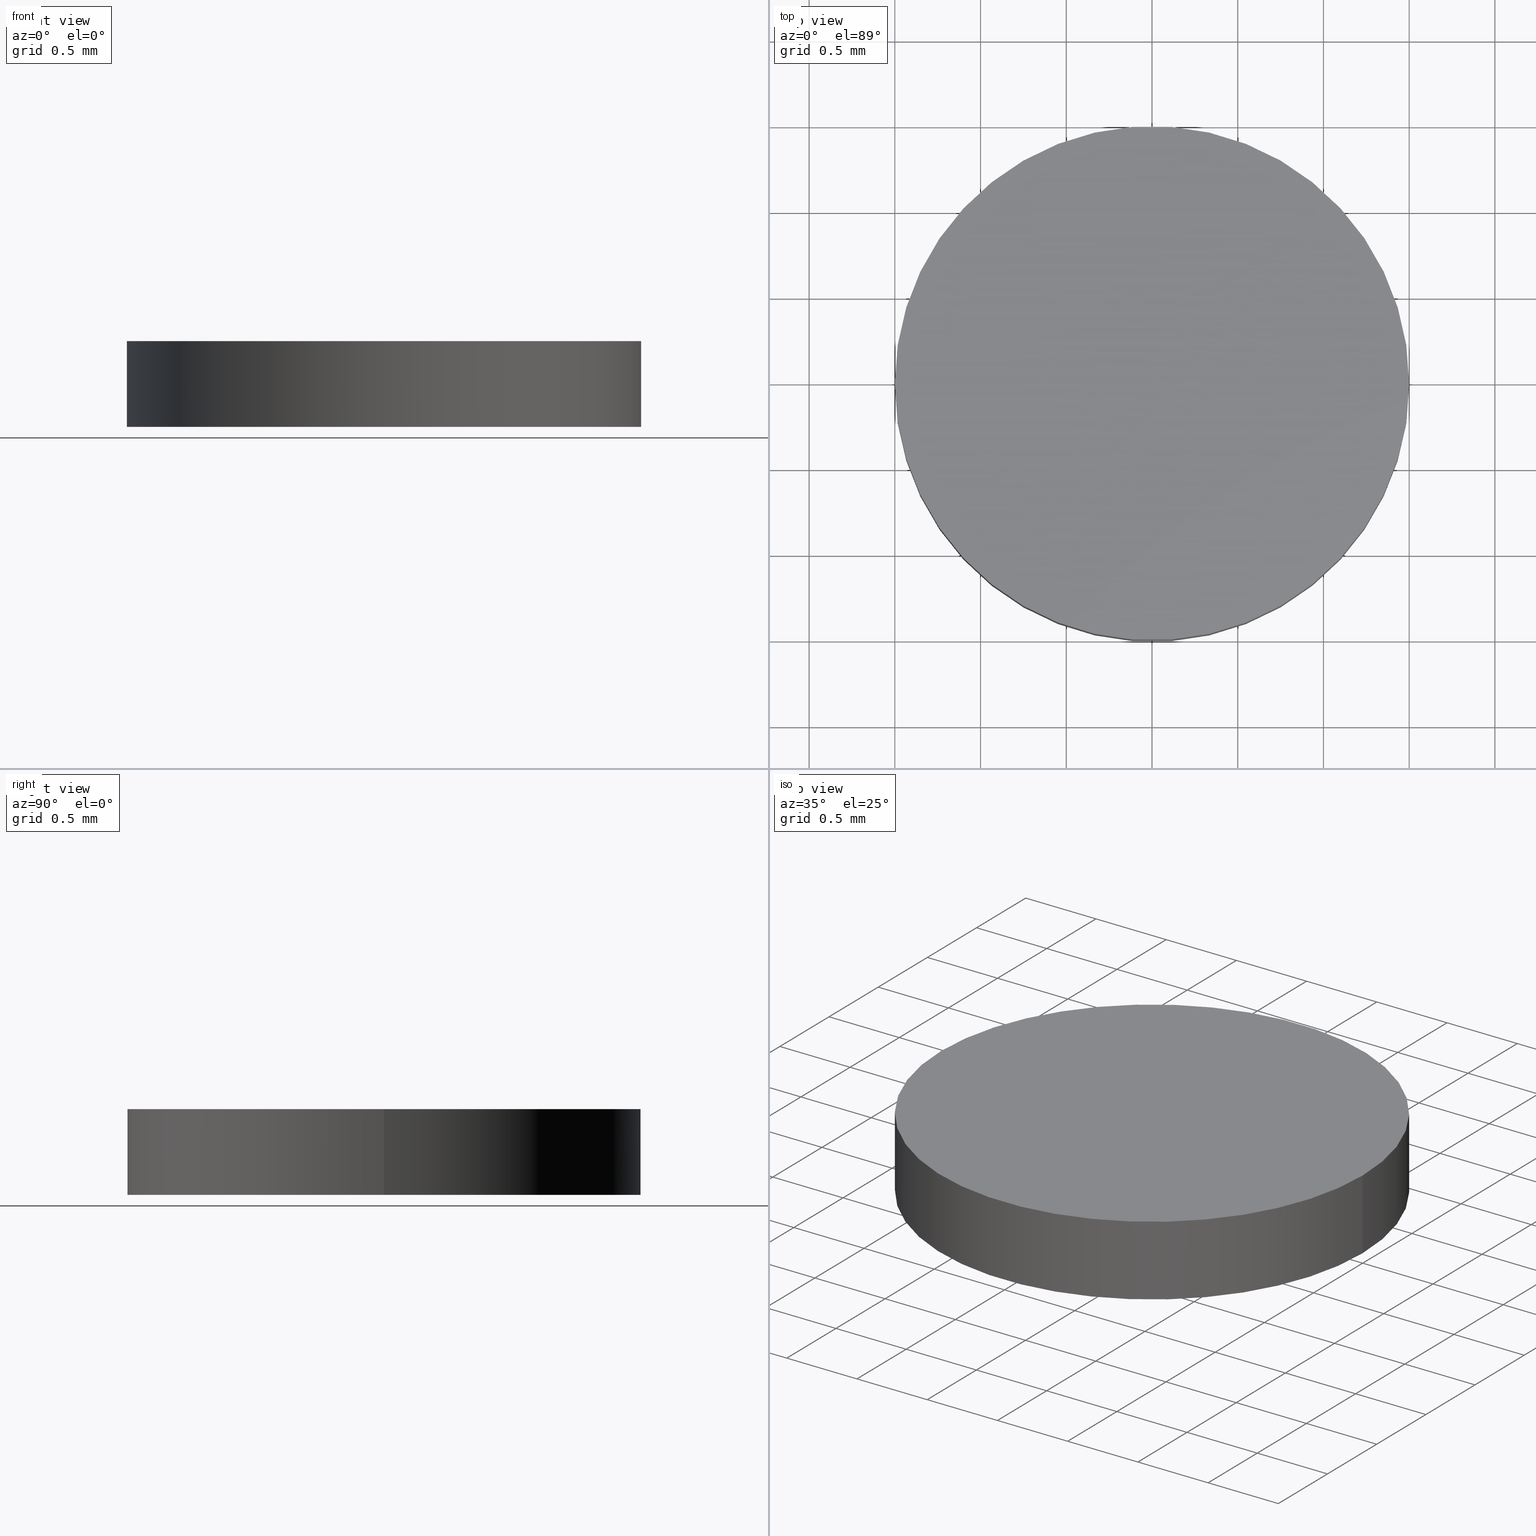
[diagram: canonical four-view strip — front | top / right | iso, engineering-drawing reading convention]
A machine part, canonical four-view strip (front | top / right | iso — engineering-drawing reading convention). The complete STEP part file that produces these views, byte-faithful:
ISO-10303-21;
HEADER;
FILE_DESCRIPTION (( 'STEP AP214' ),
    '1' );
FILE_NAME ('190110.STEP',
    '2019-07-17T01:46:05',
    ( 'user' ),
    ( '΢���й�' ),
    'SwSTEP 2.0',
    'SolidWorks 2016',
    '' );
FILE_SCHEMA (( 'AUTOMOTIVE_DESIGN' ));
ENDSEC;

DATA;
#1 = AXIS2_PLACEMENT_3D ( 'NONE', #107, #61, #57 ) ;
#2 = VERTEX_POINT ( 'NONE', #9 ) ;
#3 = SURFACE_STYLE_FILL_AREA ( #138 ) ;
#4 = SURFACE_STYLE_USAGE ( .BOTH. , #82 ) ;
#5 = AXIS2_PLACEMENT_3D ( 'NONE', #71, #135, #55 ) ;
#6 = DIRECTION ( 'NONE',  ( 0.0000000000000000000, 0.0000000000000000000, 1.000000000000000000 ) ) ;
#7 = MANIFOLD_SOLID_BREP ( '͹̨-����1', #62 ) ;
#8 = DIRECTION ( 'NONE',  ( -1.000000000000000000, 0.0000000000000000000, 0.0000000000000000000 ) ) ;
#9 = CARTESIAN_POINT ( 'NONE',  ( 1.500000000000000200, 1.836970198721030200E-016, 0.0000000000000000000 ) ) ;
#10 = ORIENTED_EDGE ( 'NONE', *, *, #132, .F. ) ;
#11 = AXIS2_PLACEMENT_3D ( 'NONE', #52, #116, #40 ) ;
#12 = LINE ( 'NONE', #128, #124 ) ;
#13 = FACE_OUTER_BOUND ( 'NONE', #45, .T. ) ;
#14 = FILL_AREA_STYLE ('',( #113 ) ) ;
#15 = PRODUCT_DEFINITION_SHAPE ( 'NONE', 'NONE',  #99 ) ;
#16 = DIRECTION ( 'NONE',  ( 1.000000000000000000, 0.0000000000000000000, 0.0000000000000000000 ) ) ;
#17 = ORIENTED_EDGE ( 'NONE', *, *, #92, .T. ) ;
#18 = DIRECTION ( 'NONE',  ( -0.0000000000000000000, -0.0000000000000000000, -1.000000000000000000 ) ) ;
#19 = EDGE_CURVE ( 'NONE', #120, #63, #12, .T. ) ;
#20 = ADVANCED_FACE ( 'NONE', ( #32 ), #68, .F. ) ;
#21 = DIRECTION ( 'NONE',  ( 0.0000000000000000000, 0.0000000000000000000, 1.000000000000000000 ) ) ;
#22 = CARTESIAN_POINT ( 'NONE',  ( 0.0000000000000000000, 0.0000000000000000000, 0.0000000000000000000 ) ) ;
#23 = ORIENTED_EDGE ( 'NONE', *, *, #115, .T. ) ;
#24 =( GEOMETRIC_REPRESENTATION_CONTEXT ( 3 ) GLOBAL_UNCERTAINTY_ASSIGNED_CONTEXT ( ( #46 ) ) GLOBAL_UNIT_ASSIGNED_CONTEXT ( ( #125, #50, #112 ) ) REPRESENTATION_CONTEXT ( 'NONE', 'WORKASPACE' ) );
#25 = ADVANCED_BREP_SHAPE_REPRESENTATION ( '190110', ( #7, #41 ), #24 ) ;
#26 = APPLICATION_PROTOCOL_DEFINITION ( 'draft international standard', 'automotive_design', 1998, #100 ) ;
#27 = CARTESIAN_POINT ( 'NONE',  ( 0.0000000000000000000, 0.0000000000000000000, 0.5000000000000000000 ) ) ;
#28 = PLANE ( 'NONE',  #109 ) ;
#29 = CARTESIAN_POINT ( 'NONE',  ( 0.0000000000000000000, 0.0000000000000000000, 0.5000000000000000000 ) ) ;
#30 = EDGE_CURVE ( 'NONE', #39, #120, #98, .T. ) ;
#31 = ORIENTED_EDGE ( 'NONE', *, *, #122, .F. ) ;
#32 = FACE_OUTER_BOUND ( 'NONE', #67, .T. ) ;
#33 = MECHANICAL_DESIGN_GEOMETRIC_PRESENTATION_REPRESENTATION (  '', ( #79 ), #47 ) ;
#34 = SHAPE_DEFINITION_REPRESENTATION ( #15, #25 ) ;
#35 = EDGE_LOOP ( 'NONE', ( #88, #23, #17, #65 ) ) ;
#36 = PRODUCT_CONTEXT ( 'NONE', #89, 'mechanical' ) ;
#37 = COLOUR_RGB ( '',1.000000000000000000, 1.000000000000000000, 1.000000000000000000 ) ;
#38 = CARTESIAN_POINT ( 'NONE',  ( 0.0000000000000000000, 0.0000000000000000000, 0.0000000000000000000 ) ) ;
#39 = VERTEX_POINT ( 'NONE', #75 ) ;
#40 = DIRECTION ( 'NONE',  ( 1.000000000000000000, 0.0000000000000000000, 0.0000000000000000000 ) ) ;
#41 = AXIS2_PLACEMENT_3D ( 'NONE', #38, #49, #111 ) ;
#42 =( NAMED_UNIT ( * ) PLANE_ANGLE_UNIT ( ) SI_UNIT ( $, .RADIAN. ) );
#43 = COLOUR_RGB ( '',1.000000000000000000, 1.000000000000000000, 1.000000000000000000 ) ;
#44 = MECHANICAL_DESIGN_GEOMETRIC_PRESENTATION_REPRESENTATION (  '', ( #103 ), #58 ) ;
#45 = EDGE_LOOP ( 'NONE', ( #93, #31, #78, #81 ) ) ;
#46 = UNCERTAINTY_MEASURE_WITH_UNIT (LENGTH_MEASURE( 1.000000000000000100E-005 ), #125, 'distance_accuracy_value', 'NONE');
#47 =( GEOMETRIC_REPRESENTATION_CONTEXT ( 3 ) GLOBAL_UNCERTAINTY_ASSIGNED_CONTEXT ( ( #74 ) ) GLOBAL_UNIT_ASSIGNED_CONTEXT ( ( #53, #42, #105 ) ) REPRESENTATION_CONTEXT ( 'NONE', 'WORKASPACE' ) );
#48 = CYLINDRICAL_SURFACE ( 'NONE', #119, 1.500000000000000200 ) ;
#49 = DIRECTION ( 'NONE',  ( 0.0000000000000000000, 0.0000000000000000000, 1.000000000000000000 ) ) ;
#50 =( NAMED_UNIT ( * ) PLANE_ANGLE_UNIT ( ) SI_UNIT ( $, .RADIAN. ) );
#51 = DIRECTION ( 'NONE',  ( 1.000000000000000000, 0.0000000000000000000, 0.0000000000000000000 ) ) ;
#52 = CARTESIAN_POINT ( 'NONE',  ( 0.0000000000000000000, 0.0000000000000000000, 0.5000000000000000000 ) ) ;
#53 =( LENGTH_UNIT ( ) NAMED_UNIT ( * ) SI_UNIT ( .MILLI., .METRE. ) );
#54 =( NAMED_UNIT ( * ) SI_UNIT ( $, .STERADIAN. ) SOLID_ANGLE_UNIT ( ) );
#55 = DIRECTION ( 'NONE',  ( 1.000000000000000000, 0.0000000000000000000, 0.0000000000000000000 ) ) ;
#56 = CARTESIAN_POINT ( 'NONE',  ( 0.0000000000000000000, 0.0000000000000000000, 0.0000000000000000000 ) ) ;
#57 = DIRECTION ( 'NONE',  ( -1.000000000000000000, 0.0000000000000000000, 0.0000000000000000000 ) ) ;
#58 =( GEOMETRIC_REPRESENTATION_CONTEXT ( 3 ) GLOBAL_UNCERTAINTY_ASSIGNED_CONTEXT ( ( #137 ) ) GLOBAL_UNIT_ASSIGNED_CONTEXT ( ( #69, #134, #54 ) ) REPRESENTATION_CONTEXT ( 'NONE', 'WORKASPACE' ) );
#59 = ADVANCED_FACE ( 'NONE', ( #70 ), #77, .T. ) ;
#60 = SURFACE_SIDE_STYLE ('',( #3 ) ) ;
#61 = DIRECTION ( 'NONE',  ( -0.0000000000000000000, -0.0000000000000000000, -1.000000000000000000 ) ) ;
#62 = CLOSED_SHELL ( 'NONE', ( #59, #104, #117, #20 ) ) ;
#63 = VERTEX_POINT ( 'NONE', #94 ) ;
#64 = AXIS2_PLACEMENT_3D ( 'NONE', #22, #21, #83 ) ;
#65 = ORIENTED_EDGE ( 'NONE', *, *, #19, .F. ) ;
#66 = ORIENTED_EDGE ( 'NONE', *, *, #30, .T. ) ;
#67 = EDGE_LOOP ( 'NONE', ( #10, #129 ) ) ;
#68 = PLANE ( 'NONE',  #64 ) ;
#69 =( LENGTH_UNIT ( ) NAMED_UNIT ( * ) SI_UNIT ( .MILLI., .METRE. ) );
#70 = FACE_OUTER_BOUND ( 'NONE', #35, .T. ) ;
#71 = CARTESIAN_POINT ( 'NONE',  ( 0.0000000000000000000, 0.0000000000000000000, 0.0000000000000000000 ) ) ;
#72 = DIRECTION ( 'NONE',  ( 1.000000000000000000, 0.0000000000000000000, -0.0000000000000000000 ) ) ;
#73 = CARTESIAN_POINT ( 'NONE',  ( 0.0000000000000000000, 0.0000000000000000000, 0.5000000000000000000 ) ) ;
#74 = UNCERTAINTY_MEASURE_WITH_UNIT (LENGTH_MEASURE( 1.000000000000000100E-005 ), #53, 'distance_accuracy_value', 'NONE');
#75 = CARTESIAN_POINT ( 'NONE',  ( 1.500000000000000200, 1.836970198721030200E-016, 0.5000000000000000000 ) ) ;
#76 = FILL_AREA_STYLE_COLOUR ( '', #43 ) ;
#77 = CYLINDRICAL_SURFACE ( 'NONE', #1, 1.500000000000000200 ) ;
#78 = ORIENTED_EDGE ( 'NONE', *, *, #19, .T. ) ;
#79 = STYLED_ITEM ( 'NONE', ( #118 ), #7 ) ;
#80 = CIRCLE ( 'NONE', #85, 1.500000000000000200 ) ;
#81 = ORIENTED_EDGE ( 'NONE', *, *, #132, .T. ) ;
#82 = SURFACE_SIDE_STYLE ('',( #84 ) ) ;
#83 = DIRECTION ( 'NONE',  ( 1.000000000000000000, 0.0000000000000000000, -0.0000000000000000000 ) ) ;
#84 = SURFACE_STYLE_FILL_AREA ( #14 ) ;
#85 = AXIS2_PLACEMENT_3D ( 'NONE', #27, #90, #16 ) ;
#86 = PRODUCT ( '190110', '190110', '', ( #36 ) ) ;
#87 = AXIS2_PLACEMENT_3D ( 'NONE', #56, #126, #51 ) ;
#88 = ORIENTED_EDGE ( 'NONE', *, *, #30, .F. ) ;
#89 = APPLICATION_CONTEXT ( 'automotive_design' ) ;
#90 = DIRECTION ( 'NONE',  ( 0.0000000000000000000, 0.0000000000000000000, 1.000000000000000000 ) ) ;
#91 = CARTESIAN_POINT ( 'NONE',  ( 1.500000000000000200, 1.836970198721030200E-016, 0.5000000000000000000 ) ) ;
#92 = EDGE_CURVE ( 'NONE', #2, #63, #130, .T. ) ;
#93 = ORIENTED_EDGE ( 'NONE', *, *, #115, .F. ) ;
#94 = CARTESIAN_POINT ( 'NONE',  ( -1.500000000000000200, 0.0000000000000000000, 0.0000000000000000000 ) ) ;
#95 = DIRECTION ( 'NONE',  ( -0.0000000000000000000, -0.0000000000000000000, -1.000000000000000000 ) ) ;
#96 = ORIENTED_EDGE ( 'NONE', *, *, #122, .T. ) ;
#97 = LINE ( 'NONE', #91, #131 ) ;
#98 = CIRCLE ( 'NONE', #11, 1.500000000000000200 ) ;
#99 = PRODUCT_DEFINITION ( 'δ֪', '', #108, #123 ) ;
#100 = APPLICATION_CONTEXT ( 'automotive_design' ) ;
#101 = CIRCLE ( 'NONE', #5, 1.500000000000000200 ) ;
#102 = APPLICATION_PROTOCOL_DEFINITION ( 'draft international standard', 'automotive_design', 1998, #89 ) ;
#103 = STYLED_ITEM ( 'NONE', ( #140 ), #25 ) ;
#104 = ADVANCED_FACE ( 'NONE', ( #13 ), #48, .T. ) ;
#105 =( NAMED_UNIT ( * ) SI_UNIT ( $, .STERADIAN. ) SOLID_ANGLE_UNIT ( ) );
#106 = PRESENTATION_LAYER_ASSIGNMENT (  '', '', ( #103 ) ) ;
#107 = CARTESIAN_POINT ( 'NONE',  ( 0.0000000000000000000, 0.0000000000000000000, 0.5000000000000000000 ) ) ;
#108 = PRODUCT_DEFINITION_FORMATION_WITH_SPECIFIED_SOURCE ( '�κ�', '', #86, .NOT_KNOWN. ) ;
#109 = AXIS2_PLACEMENT_3D ( 'NONE', #73, #6, #72 ) ;
#110 = PRODUCT_RELATED_PRODUCT_CATEGORY ( 'part', '', ( #86 ) ) ;
#111 = DIRECTION ( 'NONE',  ( 1.000000000000000000, 0.0000000000000000000, 0.0000000000000000000 ) ) ;
#112 =( NAMED_UNIT ( * ) SI_UNIT ( $, .STERADIAN. ) SOLID_ANGLE_UNIT ( ) );
#113 = FILL_AREA_STYLE_COLOUR ( '', #37 ) ;
#114 = CARTESIAN_POINT ( 'NONE',  ( -1.500000000000000200, 0.0000000000000000000, 0.5000000000000000000 ) ) ;
#115 = EDGE_CURVE ( 'NONE', #39, #2, #97, .T. ) ;
#116 = DIRECTION ( 'NONE',  ( 0.0000000000000000000, 0.0000000000000000000, 1.000000000000000000 ) ) ;
#117 = ADVANCED_FACE ( 'NONE', ( #133 ), #28, .T. ) ;
#118 = PRESENTATION_STYLE_ASSIGNMENT (( #127 ) ) ;
#119 = AXIS2_PLACEMENT_3D ( 'NONE', #29, #136, #8 ) ;
#120 = VERTEX_POINT ( 'NONE', #114 ) ;
#121 = EDGE_LOOP ( 'NONE', ( #96, #66 ) ) ;
#122 = EDGE_CURVE ( 'NONE', #120, #39, #80, .T. ) ;
#123 = PRODUCT_DEFINITION_CONTEXT ( 'detailed design', #100, 'design' ) ;
#124 = VECTOR ( 'NONE', #95, 1000.000000000000000 ) ;
#125 =( LENGTH_UNIT ( ) NAMED_UNIT ( * ) SI_UNIT ( .MILLI., .METRE. ) );
#126 = DIRECTION ( 'NONE',  ( 0.0000000000000000000, 0.0000000000000000000, 1.000000000000000000 ) ) ;
#127 = SURFACE_STYLE_USAGE ( .BOTH. , #60 ) ;
#128 = CARTESIAN_POINT ( 'NONE',  ( -1.500000000000000200, 0.0000000000000000000, 0.5000000000000000000 ) ) ;
#129 = ORIENTED_EDGE ( 'NONE', *, *, #92, .F. ) ;
#130 = CIRCLE ( 'NONE', #87, 1.500000000000000200 ) ;
#131 = VECTOR ( 'NONE', #18, 1000.000000000000000 ) ;
#132 = EDGE_CURVE ( 'NONE', #63, #2, #101, .T. ) ;
#133 = FACE_OUTER_BOUND ( 'NONE', #121, .T. ) ;
#134 =( NAMED_UNIT ( * ) PLANE_ANGLE_UNIT ( ) SI_UNIT ( $, .RADIAN. ) );
#135 = DIRECTION ( 'NONE',  ( 0.0000000000000000000, 0.0000000000000000000, 1.000000000000000000 ) ) ;
#136 = DIRECTION ( 'NONE',  ( -0.0000000000000000000, -0.0000000000000000000, -1.000000000000000000 ) ) ;
#137 = UNCERTAINTY_MEASURE_WITH_UNIT (LENGTH_MEASURE( 1.000000000000000100E-005 ), #69, 'distance_accuracy_value', 'NONE');
#138 = FILL_AREA_STYLE ('',( #76 ) ) ;
#139 = PRESENTATION_LAYER_ASSIGNMENT (  '', '', ( #79 ) ) ;
#140 = PRESENTATION_STYLE_ASSIGNMENT (( #4 ) ) ;
ENDSEC;
END-ISO-10303-21;
